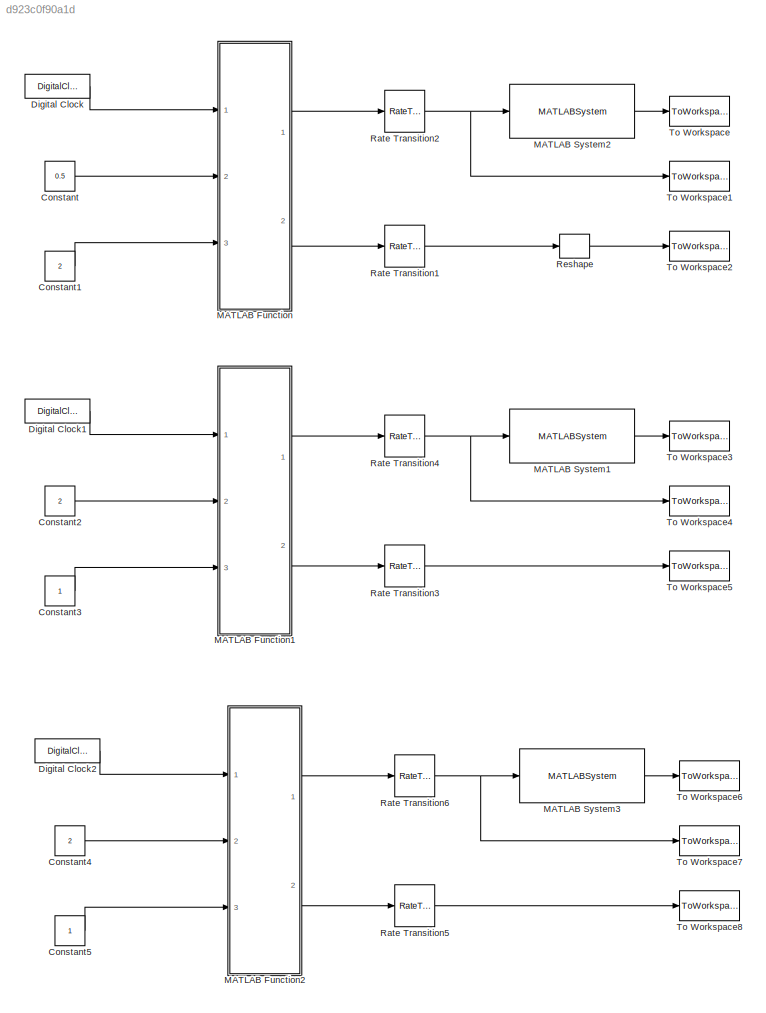
MODEL slx_d923c0f90a1d
KIND model
CONFIG AbsTol = auto
CONFIG EnableMultiTasking = off
CONFIG FixedStep = auto
CONFIG MaxStep = auto
CONFIG MinStep = auto
CONFIG RelTol = 1e-3
CONFIG SampleTimeConstraint = Unconstrained
CONFIG Solver = VariableStepAuto
CONFIG SolverName = VariableStepAuto
CONFIG StartTime = 0.0
CONFIG StopTime = 1
BLOCK [Constant] Constant
  Value = 0.5
BLOCK [Constant] Constant1
  Value = 2
BLOCK [Constant] Constant2
  Commented = on
  Value = 2
BLOCK [Constant] Constant3
  Commented = on
BLOCK [Constant] Constant4
  Commented = on
  Value = 2
BLOCK [Constant] Constant5
  Commented = on
BLOCK [DigitalClock] Digital Clock
  SampleTime = 1/2000
BLOCK [DigitalClock] Digital Clock1
  Commented = on
  SampleTime = 1/2000
BLOCK [DigitalClock] Digital Clock2
  Commented = on
  SampleTime = 1/2000
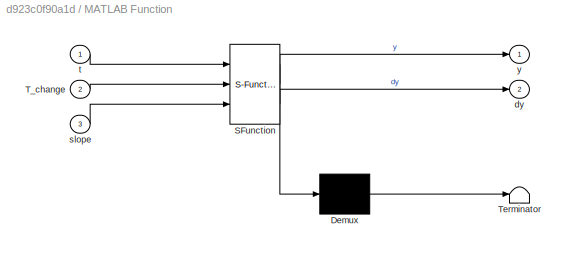
BLOCK [SubSystem] MATLAB Function
  ErrorFcn = Stateflow.Translate.translate
  PermitHierarchicalResolution = ExplicitOnly
  Ports = [3, 2]
  RequestExecContextInheritance = off
  SFBlockType = MATLAB Function
  TreatAsAtomicUnit = on
  Variant = off
BLOCK [Demux] MATLAB Function/ Demux 
  Outputs = 1
  Ports = [1, 1]
BLOCK [S-Function] MATLAB Function/ SFunction 
  EnableBusSupport = on
  FunctionName = sf_sfun
  PortCounts = [3 3]
  Ports = [3, 3]
  SFcnIsStateOwnerBlock = off
  SFunctionDeploymentMode = off
  Tag = Stateflow S-Function SuddenChangeVel 2
BLOCK [Terminator] MATLAB Function/ Terminator 
BLOCK [Inport] MATLAB Function/T_change
  IconDisplay = Port number
  Port = 2
BLOCK [Outport] MATLAB Function/dy
  IconDisplay = Port number
  Port = 2
BLOCK [Inport] MATLAB Function/slope
  IconDisplay = Port number
  Port = 3
BLOCK [Inport] MATLAB Function/t
  IconDisplay = Port number
BLOCK [Outport] MATLAB Function/y
  IconDisplay = Port number
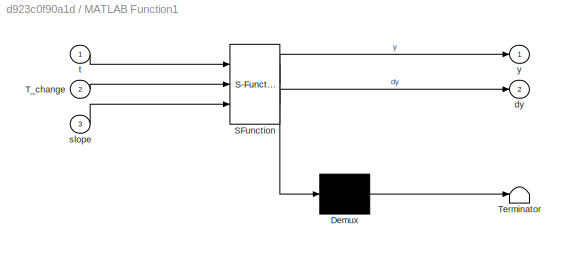
BLOCK [SubSystem] MATLAB Function1
  Commented = on
  ErrorFcn = Stateflow.Translate.translate
  PermitHierarchicalResolution = ExplicitOnly
  Ports = [3, 2]
  RequestExecContextInheritance = off
  SFBlockType = MATLAB Function
  TreatAsAtomicUnit = on
  Variant = off
BLOCK [Demux] MATLAB Function1/ Demux 
  Outputs = 1
  Ports = [1, 1]
BLOCK [S-Function] MATLAB Function1/ SFunction 
  EnableBusSupport = on
  FunctionName = sf_sfun
  PortCounts = [3 3]
  Ports = [3, 3]
  SFcnIsStateOwnerBlock = off
  SFunctionDeploymentMode = off
  Tag = Stateflow S-Function SuddenChangeVel 1
BLOCK [Terminator] MATLAB Function1/ Terminator 
BLOCK [Inport] MATLAB Function1/T_change
  IconDisplay = Port number
  Port = 2
BLOCK [Outport] MATLAB Function1/dy
  IconDisplay = Port number
  Port = 2
BLOCK [Inport] MATLAB Function1/slope
  IconDisplay = Port number
  Port = 3
BLOCK [Inport] MATLAB Function1/t
  IconDisplay = Port number
BLOCK [Outport] MATLAB Function1/y
  IconDisplay = Port number
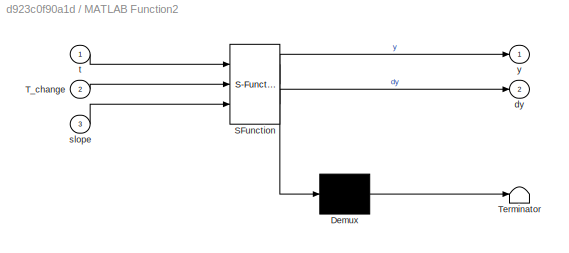
BLOCK [SubSystem] MATLAB Function2
  Commented = on
  ErrorFcn = Stateflow.Translate.translate
  PermitHierarchicalResolution = ExplicitOnly
  Ports = [3, 2]
  RequestExecContextInheritance = off
  SFBlockType = MATLAB Function
  TreatAsAtomicUnit = on
  Variant = off
BLOCK [Demux] MATLAB Function2/ Demux 
  Outputs = 1
  Ports = [1, 1]
BLOCK [S-Function] MATLAB Function2/ SFunction 
  EnableBusSupport = on
  FunctionName = sf_sfun
  PortCounts = [3 3]
  Ports = [3, 3]
  SFcnIsStateOwnerBlock = off
  SFunctionDeploymentMode = off
  Tag = Stateflow S-Function SuddenChangeVel 3
BLOCK [Terminator] MATLAB Function2/ Terminator 
BLOCK [Inport] MATLAB Function2/T_change
  IconDisplay = Port number
  Port = 2
BLOCK [Outport] MATLAB Function2/dy
  IconDisplay = Port number
  Port = 2
BLOCK [Inport] MATLAB Function2/slope
  IconDisplay = Port number
  Port = 3
BLOCK [Inport] MATLAB Function2/t
  IconDisplay = Port number
BLOCK [Outport] MATLAB Function2/y
  IconDisplay = Port number
BLOCK [MATLABSystem] MATLAB System1
  Commented = on
  MaskDisplay = disp('PolyRegressionFilter');\nport_label('input',1,'q');\nport_label('output',1,'dq');
  MaskType = PolyRegressionFilter
  Ports = [1, 1]
  SimulateUsing = Code generation
  System = PolyRegressionFilter
  delay = 0
  dop = 1
  history_length = 3
  sample_time = 1/2000
  signal_dim = 1
BLOCK [MATLABSystem] MATLAB System2
  MaskDisplay = disp('PolyRegressionFilter');\nport_label('input',1,'q');\nport_label('output',1,'dq');
  MaskType = PolyRegressionFilter
  Ports = [1, 1]
  SimulateUsing = Code generation
  System = PolyRegressionFilter
  delay = 0
  dop = 1
  history_length = 10
  sample_time = 1/2000
  signal_dim = 1
BLOCK [MATLABSystem] MATLAB System3
  Commented = on
  MaskDisplay = disp('PolyRegressionFilter');\nport_label('input',1,'q');\nport_label('output',1,'dq');
  MaskType = PolyRegressionFilter
  Ports = [1, 1]
  SimulateUsing = Code generation
  System = PolyRegressionFilter
  delay = 0
  dop = 1
  history_length = 3
  sample_time = 1/2000
  signal_dim = 1
BLOCK [RateTransition] Rate Transition1
  OutPortSampleTime = sample_time
BLOCK [RateTransition] Rate Transition2
  OutPortSampleTime = sample_time
BLOCK [RateTransition] Rate Transition3
  Commented = on
  OutPortSampleTime = sample_time
BLOCK [RateTransition] Rate Transition4
  Commented = on
  OutPortSampleTime = sample_time
BLOCK [RateTransition] Rate Transition5
  Commented = on
  OutPortSampleTime = sample_time
BLOCK [RateTransition] Rate Transition6
  Commented = on
  OutPortSampleTime = sample_time
BLOCK [Reshape] Reshape
  OutputDimensionality = Column vector (2-D)
  Ports = [1, 1]
BLOCK [ToWorkspace] To Workspace
  FixptAsFi = on
  MaxDataPoints = inf
  Ports = [1]
  SampleTime = -1
  Save2DSignal = 3-D array (concatenate along third dimension)
  SaveFormat = Timeseries
  VariableName = test_dy
BLOCK [ToWorkspace] To Workspace1
  FixptAsFi = on
  MaxDataPoints = inf
  Ports = [1]
  SampleTime = -1
  Save2DSignal = 3-D array (concatenate along third dimension)
  SaveFormat = Timeseries
  VariableName = true_y
BLOCK [ToWorkspace] To Workspace2
  FixptAsFi = on
  MaxDataPoints = inf
  Ports = [1]
  SampleTime = -1
  Save2DSignal = 3-D array (concatenate along third dimension)
  SaveFormat = Timeseries
  VariableName = true_dy
BLOCK [ToWorkspace] To Workspace3
  Commented = on
  FixptAsFi = on
  MaxDataPoints = inf
  Ports = [1]
  SampleTime = -1
  Save2DSignal = 3-D array (concatenate along third dimension)
  SaveFormat = Timeseries
  VariableName = test_dy1
BLOCK [ToWorkspace] To Workspace4
  Commented = on
  FixptAsFi = on
  MaxDataPoints = inf
  Ports = [1]
  SampleTime = -1
  Save2DSignal = 3-D array (concatenate along third dimension)
  SaveFormat = Timeseries
  VariableName = true_y1
BLOCK [ToWorkspace] To Workspace5
  Commented = on
  FixptAsFi = on
  MaxDataPoints = inf
  Ports = [1]
  SampleTime = -1
  Save2DSignal = 3-D array (concatenate along third dimension)
  SaveFormat = Timeseries
  VariableName = true_dy1
BLOCK [ToWorkspace] To Workspace6
  Commented = on
  FixptAsFi = on
  MaxDataPoints = inf
  Ports = [1]
  SampleTime = -1
  Save2DSignal = 3-D array (concatenate along third dimension)
  SaveFormat = Timeseries
  VariableName = test_dy2
BLOCK [ToWorkspace] To Workspace7
  Commented = on
  FixptAsFi = on
  MaxDataPoints = inf
  Ports = [1]
  SampleTime = -1
  Save2DSignal = 3-D array (concatenate along third dimension)
  SaveFormat = Timeseries
  VariableName = true_y2
BLOCK [ToWorkspace] To Workspace8
  Commented = on
  FixptAsFi = on
  MaxDataPoints = inf
  Ports = [1]
  SampleTime = -1
  Save2DSignal = 3-D array (concatenate along third dimension)
  SaveFormat = Timeseries
  VariableName = true_dy2
LINE Constant1:1 -> MATLAB Function:3
LINE Constant2:1 -> MATLAB Function1:2
LINE Constant3:1 -> MATLAB Function1:3
LINE Constant4:1 -> MATLAB Function2:2
LINE Constant5:1 -> MATLAB Function2:3
LINE Constant:1 -> MATLAB Function:2
LINE Digital Clock1:1 -> MATLAB Function1:1
LINE Digital Clock2:1 -> MATLAB Function2:1
LINE Digital Clock:1 -> MATLAB Function:1
LINE MATLAB Function1:1 -> Rate Transition4:1
LINE MATLAB Function1:2 -> Rate Transition3:1
LINE MATLAB Function2:1 -> Rate Transition6:1
LINE MATLAB Function2:2 -> Rate Transition5:1
LINE MATLAB Function:1 -> Rate Transition2:1
LINE MATLAB Function:2 -> Rate Transition1:1
LINE MATLAB System1:1 -> To Workspace3:1
LINE MATLAB System2:1 -> To Workspace:1
LINE MATLAB System3:1 -> To Workspace6:1
LINE Rate Transition1:1 -> Reshape:1
NET Rate Transition2:1 -> MATLAB System2:1, To Workspace1:1
LINE Rate Transition3:1 -> To Workspace5:1
NET Rate Transition4:1 -> MATLAB System1:1, To Workspace4:1
LINE Rate Transition5:1 -> To Workspace8:1
NET Rate Transition6:1 -> MATLAB System3:1, To Workspace7:1
LINE Reshape:1 -> To Workspace2:1
note: NET lines group one-source signal fan-out (src -> all destinations, sorted); 1:1 wires keep LINE
CHART MATLAB Function1 states=1 transitions=1
  STATE_LABEL 'eML_blk_kernel()'
  STATE_LABEL 'SCRIPT:\nfunction [y,dy] = position_signal(t,T_change,slope)%,T_change,slope)\nif t<T_change\n    y = slope*t;\n    dy = slope;\nelse\n    y = slope*T_change;\n    dy = 0;\nend'
CHART MATLAB Function states=1 transitions=1
  STATE_LABEL 'eML_blk_kernel()'
  STATE_LABEL 'SCRIPT:\nfunction [y,dy] = position_signal(t,T_change,slope)%,T_change,slope)\nif t<T_change\n    y = slope*t;\n    dy = slope;\nelse\n    y = slope*T_change;\n    dy = 0;\nend'
CHART MATLAB Function2 states=1 transitions=1
  STATE_LABEL 'eML_blk_kernel()'
  STATE_LABEL 'SCRIPT:\nfunction [y,dy] = position_signal(t,T_change,slope)%,T_change,slope)\nif t<T_change\n    y = slope*t;\n    dy = slope;\nelse\n    y = slope*T_change;\n    dy = 0;\nend'
